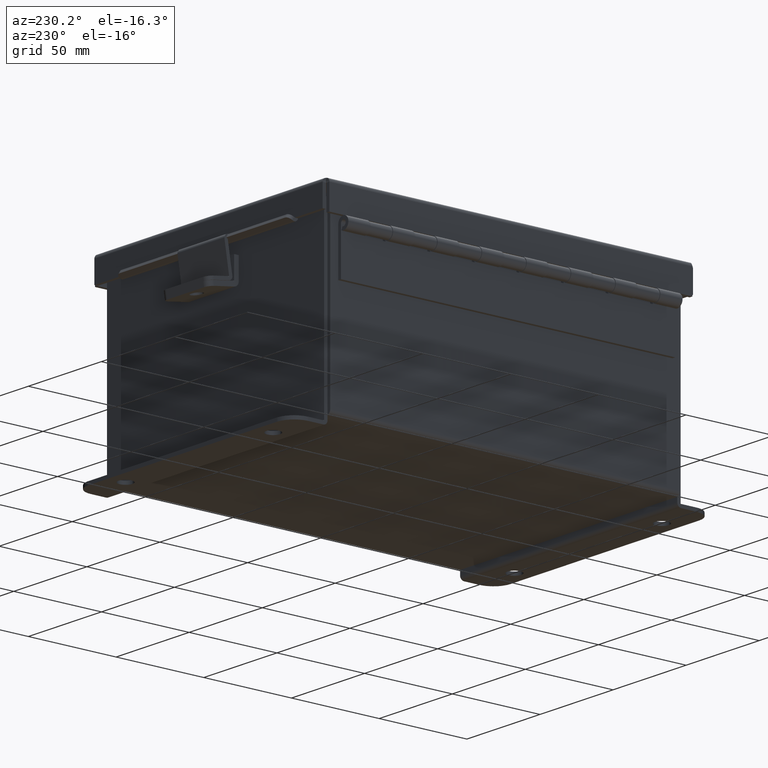
[diagram: clean part render]
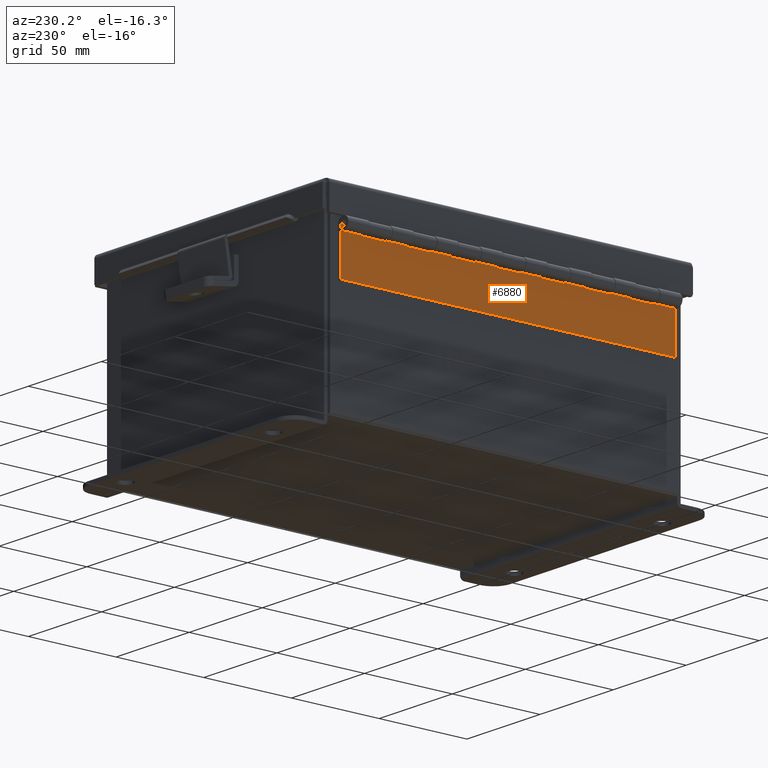
[diagram: same view with one face highlighted and labeled with its STEP entity id]
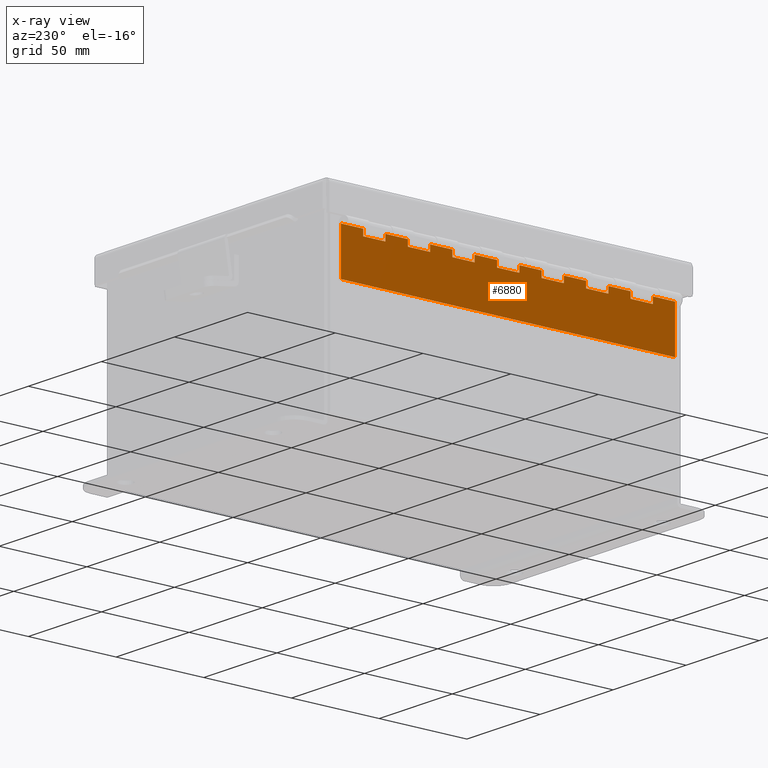
[diagram: x-ray of the same camera — body ghosted, the highlighted face saturated]
A machine part, auxiliary view. The second image highlights one B-rep face of the part: STEP entity #6880.
The next image is the same camera in x-ray: the body ghosted, the highlighted face saturated — about 0% of this face is hidden behind the body in this view.
In plain terms, the highlighted planar face has unit normal (1, -0, 0).
Its self-contained STEP definition (entity closure, byte-faithful):
#28 = CARTESIAN_POINT ( 'NONE',  ( 0.0000000000000000000, 1.000000000000001300, 0.0000000000000000000 ) ) ;
#93 = VERTEX_POINT ( 'NONE', #2707 ) ;
#108 = VERTEX_POINT ( 'NONE', #9835 ) ;
#118 = VERTEX_POINT ( 'NONE', #12742 ) ;
#121 = VERTEX_POINT ( 'NONE', #5664 ) ;
#184 = LINE ( 'NONE', #6807, #9302 ) ;
#195 = DIRECTION ( 'NONE',  ( -1.000000000000000000, 0.0000000000000000000, 0.0000000000000000000 ) ) ;
#354 = ORIENTED_EDGE ( 'NONE', *, *, #1528, .F. ) ;
#363 = CARTESIAN_POINT ( 'NONE',  ( 0.2730000000000000200, 4.500000000000000900, 0.0000000000000000000 ) ) ;
#407 = CARTESIAN_POINT ( 'NONE',  ( 0.2730000000000000200, 1.500000000000000900, 0.0000000000000000000 ) ) ;
#428 = VECTOR ( 'NONE', #1347, 39.37007874015748100 ) ;
#608 = VERTEX_POINT ( 'NONE', #14706 ) ;
#640 = VERTEX_POINT ( 'NONE', #5298 ) ;
#652 = CARTESIAN_POINT ( 'NONE',  ( 0.1365000000000000100, 0.0000000000000000000, -1.707404996040164500E-017 ) ) ;
#673 = VECTOR ( 'NONE', #3245, 39.37007874015748100 ) ;
#700 = DIRECTION ( 'NONE',  ( 0.0000000000000000000, 1.000000000000000000, 0.0000000000000000000 ) ) ;
#913 = CARTESIAN_POINT ( 'NONE',  ( 0.1365000000000000100, 1.000000000000001300, -1.707404996040164500E-017 ) ) ;
#926 = ORIENTED_EDGE ( 'NONE', *, *, #14372, .T. ) ;
#1040 = LINE ( 'NONE', #10391, #673 ) ;
#1175 = VECTOR ( 'NONE', #8747, 39.37007874015748100 ) ;
#1193 = DIRECTION ( 'NONE',  ( 0.0000000000000000000, 1.000000000000000000, 0.0000000000000000000 ) ) ;
#1239 = CARTESIAN_POINT ( 'NONE',  ( 0.1365000000000000100, 0.0000000000000000000, -1.707404996040164500E-017 ) ) ;
#1284 = LINE ( 'NONE', #8016, #13899 ) ;
#1297 = VECTOR ( 'NONE', #14852, 39.37007874015748100 ) ;
#1347 = DIRECTION ( 'NONE',  ( 0.0000000000000000000, 1.000000000000000000, 0.0000000000000000000 ) ) ;
#1528 = EDGE_CURVE ( 'NONE', #9395, #11686, #4342, .T. ) ;
#1619 = EDGE_CURVE ( 'NONE', #1651, #640, #3584, .T. ) ;
#1651 = VERTEX_POINT ( 'NONE', #407 ) ;
#1786 = CARTESIAN_POINT ( 'NONE',  ( 0.2730000000000000200, 3.000000000000000900, 0.0000000000000000000 ) ) ;
#1790 = LINE ( 'NONE', #11244, #8102 ) ;
#1806 = LINE ( 'NONE', #6377, #4965 ) ;
#2033 = VECTOR ( 'NONE', #7239, 39.37007874015748100 ) ;
#2082 = ORIENTED_EDGE ( 'NONE', *, *, #5135, .F. ) ;
#2121 = ORIENTED_EDGE ( 'NONE', *, *, #12513, .F. ) ;
#2140 = LINE ( 'NONE', #10653, #11252 ) ;
#2206 = ORIENTED_EDGE ( 'NONE', *, *, #5622, .T. ) ;
#2257 = CARTESIAN_POINT ( 'NONE',  ( 0.2730000000000000200, 2.500000000000001300, 0.0000000000000000000 ) ) ;
#2336 = DIRECTION ( 'NONE',  ( -1.000000000000000000, 0.0000000000000000000, 0.0000000000000000000 ) ) ;
#2352 = CARTESIAN_POINT ( 'NONE',  ( 0.1365000000000000100, 0.0000000000000000000, -1.707404996040164500E-017 ) ) ;
#2402 = ORIENTED_EDGE ( 'NONE', *, *, #1619, .F. ) ;
#2408 = ORIENTED_EDGE ( 'NONE', *, *, #9487, .T. ) ;
#2460 = VERTEX_POINT ( 'NONE', #5880 ) ;
#2537 = DIRECTION ( 'NONE',  ( -1.000000000000000000, 0.0000000000000000000, 0.0000000000000000000 ) ) ;
#2558 = VERTEX_POINT ( 'NONE', #13154 ) ;
#2590 = ORIENTED_EDGE ( 'NONE', *, *, #11299, .F. ) ;
#2707 = CARTESIAN_POINT ( 'NONE',  ( 0.1365000000000000100, 3.000000000000000900, -1.707404996040164500E-017 ) ) ;
#2758 = CARTESIAN_POINT ( 'NONE',  ( 0.2730000000000000200, -1.000000000000000000, 0.0000000000000000000 ) ) ;
#2831 = CARTESIAN_POINT ( 'NONE',  ( 0.2730000000000000200, 0.5000000000000017800, 0.0000000000000000000 ) ) ;
#2913 = EDGE_CURVE ( 'NONE', #118, #608, #6535, .T. ) ;
#2975 = VERTEX_POINT ( 'NONE', #913 ) ;
#2994 = CARTESIAN_POINT ( 'NONE',  ( 0.1365000000000000100, 5.500000000000000900, -1.707404996040164500E-017 ) ) ;
#3047 = DIRECTION ( 'NONE',  ( 0.0000000000000000000, 1.000000000000000000, 0.0000000000000000000 ) ) ;
#3158 = ORIENTED_EDGE ( 'NONE', *, *, #4727, .F. ) ;
#3188 = VERTEX_POINT ( 'NONE', #2994 ) ;
#3206 = EDGE_CURVE ( 'NONE', #11686, #3188, #12272, .T. ) ;
#3225 = CARTESIAN_POINT ( 'NONE',  ( 0.2730000000000000200, 3.500000000000001300, 0.0000000000000000000 ) ) ;
#3243 = VECTOR ( 'NONE', #1193, 39.37007874015748100 ) ;
#3245 = DIRECTION ( 'NONE',  ( -1.000000000000000000, 0.0000000000000000000, 0.0000000000000000000 ) ) ;
#3366 = DIRECTION ( 'NONE',  ( 1.000000000000000000, 0.0000000000000000000, 0.0000000000000000000 ) ) ;
#3394 = LINE ( 'NONE', #13122, #9729 ) ;
#3483 = CARTESIAN_POINT ( 'NONE',  ( 1.136500000000000100, 7.500000000000000000, 0.0000000000000000000 ) ) ;
#3491 = LINE ( 'NONE', #5797, #12595 ) ;
#3584 = LINE ( 'NONE', #8468, #428 ) ;
#3593 = EDGE_CURVE ( 'NONE', #13355, #11355, #4659, .T. ) ;
#3639 = ORIENTED_EDGE ( 'NONE', *, *, #2913, .T. ) ;
#3672 = DIRECTION ( 'NONE',  ( -1.000000000000000000, 0.0000000000000000000, 0.0000000000000000000 ) ) ;
#3767 = ORIENTED_EDGE ( 'NONE', *, *, #15040, .F. ) ;
#3772 = ORIENTED_EDGE ( 'NONE', *, *, #3593, .F. ) ;
#3827 = EDGE_CURVE ( 'NONE', #640, #4709, #7995, .T. ) ;
#3973 = CARTESIAN_POINT ( 'NONE',  ( 1.136500000000000100, 0.0000000000000000000, 0.0000000000000000000 ) ) ;
#4117 = DIRECTION ( 'NONE',  ( 0.0000000000000000000, 1.000000000000000000, 0.0000000000000000000 ) ) ;
#4157 = ORIENTED_EDGE ( 'NONE', *, *, #7290, .F. ) ;
#4281 = LINE ( 'NONE', #10665, #7442 ) ;
#4342 = LINE ( 'NONE', #5165, #1175 ) ;
#4348 = CARTESIAN_POINT ( 'NONE',  ( 0.0000000000000000000, 6.500000000000000900, 0.0000000000000000000 ) ) ;
#4403 = DIRECTION ( 'NONE',  ( 0.0000000000000000000, 1.000000000000000000, 0.0000000000000000000 ) ) ;
#4436 = VECTOR ( 'NONE', #700, 39.37007874015748100 ) ;
#4637 = LINE ( 'NONE', #12643, #13716 ) ;
#4659 = LINE ( 'NONE', #7302, #7449 ) ;
#4709 = VERTEX_POINT ( 'NONE', #12821 ) ;
#4727 = EDGE_CURVE ( 'NONE', #4709, #108, #3491, .T. ) ;
#4751 = CARTESIAN_POINT ( 'NONE',  ( 0.1365000000000000100, 1.500000000000000900, -1.707404996040164500E-017 ) ) ;
#4796 = CARTESIAN_POINT ( 'NONE',  ( 0.1365000000000000100, 7.000000000000000900, -1.707404996040164500E-017 ) ) ;
#4809 = LINE ( 'NONE', #11952, #2033 ) ;
#4908 = EDGE_CURVE ( 'NONE', #2460, #3188, #4809, .T. ) ;
#4930 = VECTOR ( 'NONE', #9556, 39.37007874015748100 ) ;
#4965 = VECTOR ( 'NONE', #13464, 39.37007874015748100 ) ;
#5062 = VECTOR ( 'NONE', #11362, 39.37007874015748100 ) ;
#5083 = VECTOR ( 'NONE', #13429, 39.37007874015748100 ) ;
#5098 = CARTESIAN_POINT ( 'NONE',  ( 0.1365000000000000100, 6.000000000000000900, -1.707404996040164500E-017 ) ) ;
#5135 = EDGE_CURVE ( 'NONE', #118, #5630, #8518, .T. ) ;
#5165 = CARTESIAN_POINT ( 'NONE',  ( 0.0000000000000000000, 5.000000000000000000, 0.0000000000000000000 ) ) ;
#5183 = ORIENTED_EDGE ( 'NONE', *, *, #4908, .T. ) ;
#5295 = ORIENTED_EDGE ( 'NONE', *, *, #12565, .F. ) ;
#5298 = CARTESIAN_POINT ( 'NONE',  ( 0.2730000000000000200, 2.000000000000000400, 0.0000000000000000000 ) ) ;
#5364 = ORIENTED_EDGE ( 'NONE', *, *, #3827, .F. ) ;
#5473 = LINE ( 'NONE', #2758, #5083 ) ;
#5622 = EDGE_CURVE ( 'NONE', #8541, #108, #12394, .T. ) ;
#5630 = VERTEX_POINT ( 'NONE', #10861 ) ;
#5664 = CARTESIAN_POINT ( 'NONE',  ( 0.1364999999999999000, 0.0000000000000000000, 0.0000000000000000000 ) ) ;
#5797 = CARTESIAN_POINT ( 'NONE',  ( 0.1365000000000000100, 0.0000000000000000000, -1.707404996040164500E-017 ) ) ;
#5880 = CARTESIAN_POINT ( 'NONE',  ( 0.2730000000000000200, 5.500000000000000900, 0.0000000000000000000 ) ) ;
#6020 = EDGE_CURVE ( 'NONE', #5630, #7284, #2140, .T. ) ;
#6085 = EDGE_CURVE ( 'NONE', #11355, #2975, #14390, .T. ) ;
#6162 = CARTESIAN_POINT ( 'NONE',  ( 0.2730000000000000200, 5.000000000000000000, 0.0000000000000000000 ) ) ;
#6377 = CARTESIAN_POINT ( 'NONE',  ( 0.0000000000000000000, 3.500000000000001300, 0.0000000000000000000 ) ) ;
#6471 = VERTEX_POINT ( 'NONE', #6788 ) ;
#6535 = LINE ( 'NONE', #4348, #12466 ) ;
#6556 = DIRECTION ( 'NONE',  ( 0.0000000000000000000, 1.000000000000000000, 0.0000000000000000000 ) ) ;
#6586 = CARTESIAN_POINT ( 'NONE',  ( 0.1365000000000000100, 0.0000000000000000000, -1.707404996040164500E-017 ) ) ;
#6645 = ORIENTED_EDGE ( 'NONE', *, *, #7387, .F. ) ;
#6788 = CARTESIAN_POINT ( 'NONE',  ( 0.1365000000000000100, 7.500000000000000000, -1.707404996040164500E-017 ) ) ;
#6807 = CARTESIAN_POINT ( 'NONE',  ( 0.0000000000000000000, 4.500000000000000900, 0.0000000000000000000 ) ) ;
#6814 = ORIENTED_EDGE ( 'NONE', *, *, #14542, .T. ) ;
#6869 = CARTESIAN_POINT ( 'NONE',  ( 0.1365000000000000100, 0.5000000000000017800, -1.707404996040164500E-017 ) ) ;
#6880 = ADVANCED_FACE ( 'NONE', ( #11047 ), #8648, .F. ) ;
#6896 = EDGE_CURVE ( 'NONE', #7284, #6471, #7884, .T. ) ;
#6974 = DIRECTION ( 'NONE',  ( 0.0000000000000000000, 1.000000000000000000, 0.0000000000000000000 ) ) ;
#7077 = VERTEX_POINT ( 'NONE', #6869 ) ;
#7239 = DIRECTION ( 'NONE',  ( -1.000000000000000000, 0.0000000000000000000, 0.0000000000000000000 ) ) ;
#7284 = VERTEX_POINT ( 'NONE', #4796 ) ;
#7290 = EDGE_CURVE ( 'NONE', #8541, #12065, #3394, .T. ) ;
#7302 = CARTESIAN_POINT ( 'NONE',  ( 0.2730000000000000200, -5.999999999999999100, 0.0000000000000000000 ) ) ;
#7351 = VERTEX_POINT ( 'NONE', #13380 ) ;
#7387 = EDGE_CURVE ( 'NONE', #2460, #13985, #5473, .T. ) ;
#7442 = VECTOR ( 'NONE', #2336, 39.37007874015748100 ) ;
#7449 = VECTOR ( 'NONE', #8496, 39.37007874015748100 ) ;
#7614 = ORIENTED_EDGE ( 'NONE', *, *, #7800, .T. ) ;
#7678 = DIRECTION ( 'NONE',  ( 0.0000000000000000000, 1.000000000000000000, 0.0000000000000000000 ) ) ;
#7726 = DIRECTION ( 'NONE',  ( -1.000000000000000000, 0.0000000000000000000, -0.0000000000000000000 ) ) ;
#7800 = EDGE_CURVE ( 'NONE', #10646, #6471, #12840, .T. ) ;
#7813 = LINE ( 'NONE', #3973, #13724 ) ;
#7819 = CARTESIAN_POINT ( 'NONE',  ( 0.2730000000000000200, -2.000000000000000000, 0.0000000000000000000 ) ) ;
#7884 = LINE ( 'NONE', #8908, #10676 ) ;
#7932 = LINE ( 'NONE', #12090, #14227 ) ;
#7995 = LINE ( 'NONE', #13655, #1297 ) ;
#8016 = CARTESIAN_POINT ( 'NONE',  ( 0.0000000000000000000, 3.000000000000000900, 0.0000000000000000000 ) ) ;
#8102 = VECTOR ( 'NONE', #4117, 39.37007874015748100 ) ;
#8210 = LINE ( 'NONE', #652, #5062 ) ;
#8363 = DIRECTION ( 'NONE',  ( 0.0000000000000000000, 1.000000000000000000, 0.0000000000000000000 ) ) ;
#8462 = CARTESIAN_POINT ( 'NONE',  ( 0.0000000000000000000, 2.500000000000001300, 0.0000000000000000000 ) ) ;
#8468 = CARTESIAN_POINT ( 'NONE',  ( 0.2730000000000000200, -5.000000000000000000, 0.0000000000000000000 ) ) ;
#8496 = DIRECTION ( 'NONE',  ( 0.0000000000000000000, 1.000000000000000000, 0.0000000000000000000 ) ) ;
#8518 = LINE ( 'NONE', #12410, #14443 ) ;
#8541 = VERTEX_POINT ( 'NONE', #2257 ) ;
#8648 = PLANE ( 'NONE',  #11391 ) ;
#8693 = DIRECTION ( 'NONE',  ( -1.821231995776175500E-017, 1.000000000000000000, 0.0000000000000000000 ) ) ;
#8694 = VECTOR ( 'NONE', #11852, 39.37007874015748100 ) ;
#8747 = DIRECTION ( 'NONE',  ( -1.000000000000000000, 0.0000000000000000000, 0.0000000000000000000 ) ) ;
#8773 = ORIENTED_EDGE ( 'NONE', *, *, #6085, .F. ) ;
#8900 = VERTEX_POINT ( 'NONE', #363 ) ;
#8908 = CARTESIAN_POINT ( 'NONE',  ( 0.1365000000000000100, 0.0000000000000000000, -1.707404996040164500E-017 ) ) ;
#9049 = VECTOR ( 'NONE', #3366, 39.37007874015748100 ) ;
#9125 = VECTOR ( 'NONE', #3047, 39.37007874015748100 ) ;
#9204 = DIRECTION ( 'NONE',  ( -1.000000000000000000, 0.0000000000000000000, 0.0000000000000000000 ) ) ;
#9232 = CARTESIAN_POINT ( 'NONE',  ( 0.1365000000000000100, 5.000000000000000000, -1.707404996040164500E-017 ) ) ;
#9302 = VECTOR ( 'NONE', #15095, 39.37007874015748100 ) ;
#9395 = VERTEX_POINT ( 'NONE', #6162 ) ;
#9431 = ORIENTED_EDGE ( 'NONE', *, *, #11169, .T. ) ;
#9487 = EDGE_CURVE ( 'NONE', #2558, #10646, #7813, .T. ) ;
#9556 = DIRECTION ( 'NONE',  ( -1.000000000000000000, 0.0000000000000000000, 0.0000000000000000000 ) ) ;
#9563 = ORIENTED_EDGE ( 'NONE', *, *, #6896, .F. ) ;
#9565 = CARTESIAN_POINT ( 'NONE',  ( 0.2730000000000000200, 1.000000000000001300, 0.0000000000000000000 ) ) ;
#9670 = CARTESIAN_POINT ( 'NONE',  ( 0.0000000000000000000, 4.000000000000000900, 0.0000000000000000000 ) ) ;
#9729 = VECTOR ( 'NONE', #14329, 39.37007874015748100 ) ;
#9737 = VERTEX_POINT ( 'NONE', #3225 ) ;
#9779 = EDGE_CURVE ( 'NONE', #12065, #93, #1284, .T. ) ;
#9835 = CARTESIAN_POINT ( 'NONE',  ( 0.1365000000000000100, 2.500000000000001300, -1.707404996040164500E-017 ) ) ;
#9899 = ORIENTED_EDGE ( 'NONE', *, *, #6020, .F. ) ;
#10000 = ORIENTED_EDGE ( 'NONE', *, *, #3206, .F. ) ;
#10288 = ORIENTED_EDGE ( 'NONE', *, *, #13472, .F. ) ;
#10391 = CARTESIAN_POINT ( 'NONE',  ( 0.0000000000000000000, 0.5000000000000017800, 0.0000000000000000000 ) ) ;
#10446 = CARTESIAN_POINT ( 'NONE',  ( 0.0000000000000000000, 7.500000000000000000, 0.0000000000000000000 ) ) ;
#10513 = CARTESIAN_POINT ( 'NONE',  ( 0.0000000000000000000, 0.0000000000000000000, 0.0000000000000000000 ) ) ;
#10646 = VERTEX_POINT ( 'NONE', #3483 ) ;
#10653 = CARTESIAN_POINT ( 'NONE',  ( 0.0000000000000000000, 7.000000000000000900, 0.0000000000000000000 ) ) ;
#10665 = CARTESIAN_POINT ( 'NONE',  ( 0.0000000000000000000, 1.500000000000000900, 0.0000000000000000000 ) ) ;
#10671 = EDGE_CURVE ( 'NONE', #93, #7351, #15352, .T. ) ;
#10676 = VECTOR ( 'NONE', #7678, 39.37007874015748100 ) ;
#10680 = VERTEX_POINT ( 'NONE', #4751 ) ;
#10833 = CARTESIAN_POINT ( 'NONE',  ( 0.2730000000000000200, 6.000000000000000900, 0.0000000000000000000 ) ) ;
#10861 = CARTESIAN_POINT ( 'NONE',  ( 0.2730000000000000200, 7.000000000000000900, 0.0000000000000000000 ) ) ;
#11047 = FACE_OUTER_BOUND ( 'NONE', #12312, .T. ) ;
#11107 = LINE ( 'NONE', #1239, #14243 ) ;
#11113 = ORIENTED_EDGE ( 'NONE', *, *, #12906, .T. ) ;
#11169 = EDGE_CURVE ( 'NONE', #121, #2558, #12206, .T. ) ;
#11232 = VERTEX_POINT ( 'NONE', #14164 ) ;
#11244 = CARTESIAN_POINT ( 'NONE',  ( 0.1365000000000000100, 0.0000000000000000000, -1.707404996040164500E-017 ) ) ;
#11252 = VECTOR ( 'NONE', #11826, 39.37007874015748100 ) ;
#11299 = EDGE_CURVE ( 'NONE', #2975, #10680, #11107, .T. ) ;
#11353 = ORIENTED_EDGE ( 'NONE', *, *, #12037, .F. ) ;
#11355 = VERTEX_POINT ( 'NONE', #9565 ) ;
#11362 = DIRECTION ( 'NONE',  ( 0.0000000000000000000, 1.000000000000000000, 0.0000000000000000000 ) ) ;
#11391 = AXIS2_PLACEMENT_3D ( 'NONE', #12423, #14802, #7726 ) ;
#11547 = EDGE_CURVE ( 'NONE', #9737, #7351, #1806, .T. ) ;
#11561 = ORIENTED_EDGE ( 'NONE', *, *, #12419, .F. ) ;
#11620 = DIRECTION ( 'NONE',  ( -1.000000000000000000, -0.0000000000000000000, -0.0000000000000000000 ) ) ;
#11639 = ORIENTED_EDGE ( 'NONE', *, *, #10671, .F. ) ;
#11686 = VERTEX_POINT ( 'NONE', #9232 ) ;
#11765 = ORIENTED_EDGE ( 'NONE', *, *, #9779, .F. ) ;
#11826 = DIRECTION ( 'NONE',  ( -1.000000000000000000, 0.0000000000000000000, 0.0000000000000000000 ) ) ;
#11852 = DIRECTION ( 'NONE',  ( 0.0000000000000000000, 1.000000000000000000, 0.0000000000000000000 ) ) ;
#11952 = CARTESIAN_POINT ( 'NONE',  ( 0.0000000000000000000, 5.500000000000000900, 0.0000000000000000000 ) ) ;
#11985 = CARTESIAN_POINT ( 'NONE',  ( 0.1365000000000000100, 4.500000000000000900, -1.707404996040164500E-017 ) ) ;
#12037 = EDGE_CURVE ( 'NONE', #121, #7077, #1790, .T. ) ;
#12055 = CARTESIAN_POINT ( 'NONE',  ( 0.1365000000000000100, 4.000000000000000900, -1.707404996040164500E-017 ) ) ;
#12065 = VERTEX_POINT ( 'NONE', #1786 ) ;
#12090 = CARTESIAN_POINT ( 'NONE',  ( 0.0000000000000000000, 6.000000000000000900, 0.0000000000000000000 ) ) ;
#12206 = LINE ( 'NONE', #10513, #9049 ) ;
#12272 = LINE ( 'NONE', #6586, #9125 ) ;
#12312 = EDGE_LOOP ( 'NONE', ( #11113, #11353, #9431, #2408, #7614, #9563, #9899, #2082, #3639, #3767, #5295, #6645, #5183, #10000, #354, #14236, #926, #10288, #2121, #11561, #12816, #11639, #11765, #4157, #2206, #3158, #5364, #2402, #6814, #2590, #8773, #3772 ) ) ;
#12394 = LINE ( 'NONE', #8462, #15164 ) ;
#12410 = CARTESIAN_POINT ( 'NONE',  ( 0.2730000000000000200, 0.0000000000000000000, 0.0000000000000000000 ) ) ;
#12419 = EDGE_CURVE ( 'NONE', #9737, #11232, #13082, .T. ) ;
#12423 = CARTESIAN_POINT ( 'NONE',  ( 1.136499999999999800, 7.500000000000000000, 0.0000000000000000000 ) ) ;
#12466 = VECTOR ( 'NONE', #15015, 39.37007874015748100 ) ;
#12513 = EDGE_CURVE ( 'NONE', #11232, #14002, #14591, .T. ) ;
#12565 = EDGE_CURVE ( 'NONE', #13985, #12644, #7932, .T. ) ;
#12595 = VECTOR ( 'NONE', #6974, 39.37007874015748100 ) ;
#12605 = LINE ( 'NONE', #7819, #4436 ) ;
#12643 = CARTESIAN_POINT ( 'NONE',  ( 0.1365000000000000100, 0.0000000000000000000, -1.707404996040164500E-017 ) ) ;
#12644 = VERTEX_POINT ( 'NONE', #5098 ) ;
#12742 = CARTESIAN_POINT ( 'NONE',  ( 0.2730000000000000200, 6.500000000000000900, 0.0000000000000000000 ) ) ;
#12816 = ORIENTED_EDGE ( 'NONE', *, *, #11547, .T. ) ;
#12821 = CARTESIAN_POINT ( 'NONE',  ( 0.1365000000000000100, 2.000000000000000400, -1.707404996040164500E-017 ) ) ;
#12840 = LINE ( 'NONE', #10446, #15254 ) ;
#12906 = EDGE_CURVE ( 'NONE', #13355, #7077, #1040, .T. ) ;
#13082 = LINE ( 'NONE', #15342, #3243 ) ;
#13122 = CARTESIAN_POINT ( 'NONE',  ( 0.2730000000000000200, -4.000000000000000000, 0.0000000000000000000 ) ) ;
#13154 = CARTESIAN_POINT ( 'NONE',  ( 1.136500000000000100, 0.0000000000000000000, 0.0000000000000000000 ) ) ;
#13355 = VERTEX_POINT ( 'NONE', #2831 ) ;
#13380 = CARTESIAN_POINT ( 'NONE',  ( 0.1365000000000000100, 3.500000000000001300, -1.707404996040164500E-017 ) ) ;
#13429 = DIRECTION ( 'NONE',  ( 0.0000000000000000000, 1.000000000000000000, 0.0000000000000000000 ) ) ;
#13464 = DIRECTION ( 'NONE',  ( -1.000000000000000000, 0.0000000000000000000, 0.0000000000000000000 ) ) ;
#13472 = EDGE_CURVE ( 'NONE', #14002, #14618, #8210, .T. ) ;
#13655 = CARTESIAN_POINT ( 'NONE',  ( 0.0000000000000000000, 2.000000000000000400, 0.0000000000000000000 ) ) ;
#13716 = VECTOR ( 'NONE', #4403, 39.37007874015748100 ) ;
#13724 = VECTOR ( 'NONE', #8693, 39.37007874015748100 ) ;
#13899 = VECTOR ( 'NONE', #9204, 39.37007874015748100 ) ;
#13985 = VERTEX_POINT ( 'NONE', #10833 ) ;
#14002 = VERTEX_POINT ( 'NONE', #12055 ) ;
#14164 = CARTESIAN_POINT ( 'NONE',  ( 0.2730000000000000200, 4.000000000000000900, 0.0000000000000000000 ) ) ;
#14227 = VECTOR ( 'NONE', #195, 39.37007874015748100 ) ;
#14236 = ORIENTED_EDGE ( 'NONE', *, *, #15247, .F. ) ;
#14243 = VECTOR ( 'NONE', #8363, 39.37007874015748100 ) ;
#14329 = DIRECTION ( 'NONE',  ( 0.0000000000000000000, 1.000000000000000000, 0.0000000000000000000 ) ) ;
#14372 = EDGE_CURVE ( 'NONE', #8900, #14618, #184, .T. ) ;
#14390 = LINE ( 'NONE', #28, #4930 ) ;
#14443 = VECTOR ( 'NONE', #6556, 39.37007874015748100 ) ;
#14542 = EDGE_CURVE ( 'NONE', #1651, #10680, #4281, .T. ) ;
#14591 = LINE ( 'NONE', #9670, #14753 ) ;
#14618 = VERTEX_POINT ( 'NONE', #11985 ) ;
#14706 = CARTESIAN_POINT ( 'NONE',  ( 0.1365000000000000100, 6.500000000000000900, -1.707404996040164500E-017 ) ) ;
#14753 = VECTOR ( 'NONE', #2537, 39.37007874015748100 ) ;
#14802 = DIRECTION ( 'NONE',  ( 0.0000000000000000000, 0.0000000000000000000, -1.000000000000000000 ) ) ;
#14852 = DIRECTION ( 'NONE',  ( -1.000000000000000000, 0.0000000000000000000, 0.0000000000000000000 ) ) ;
#15015 = DIRECTION ( 'NONE',  ( -1.000000000000000000, 0.0000000000000000000, 0.0000000000000000000 ) ) ;
#15040 = EDGE_CURVE ( 'NONE', #12644, #608, #4637, .T. ) ;
#15095 = DIRECTION ( 'NONE',  ( -1.000000000000000000, 0.0000000000000000000, 0.0000000000000000000 ) ) ;
#15164 = VECTOR ( 'NONE', #3672, 39.37007874015748100 ) ;
#15247 = EDGE_CURVE ( 'NONE', #8900, #9395, #12605, .T. ) ;
#15254 = VECTOR ( 'NONE', #11620, 39.37007874015748100 ) ;
#15342 = CARTESIAN_POINT ( 'NONE',  ( 0.2730000000000000200, -2.999999999999999600, 0.0000000000000000000 ) ) ;
#15352 = LINE ( 'NONE', #2352, #8694 ) ;